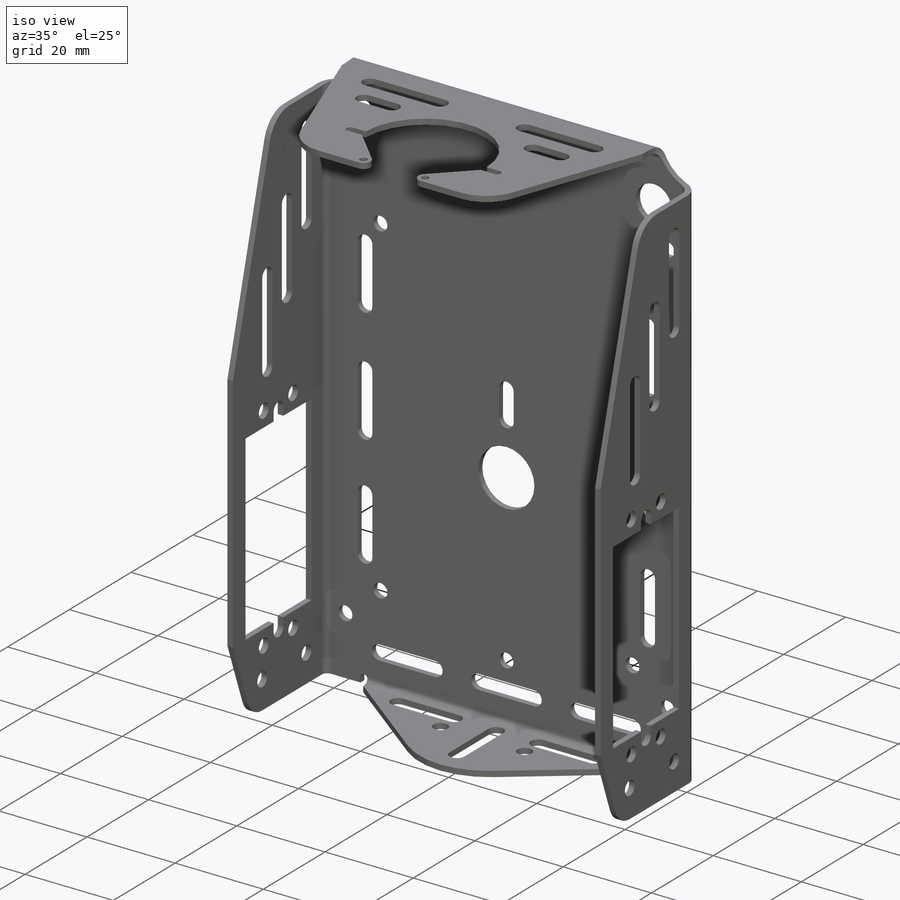
[diagram: iso view]
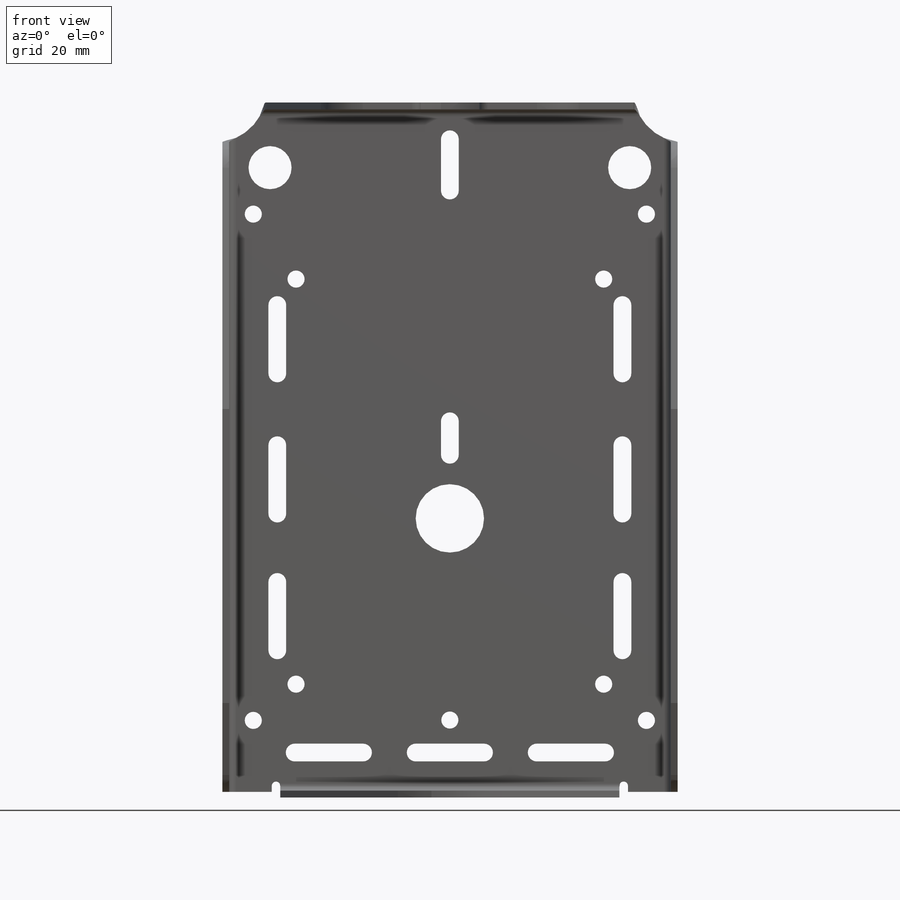
[diagram: front view]
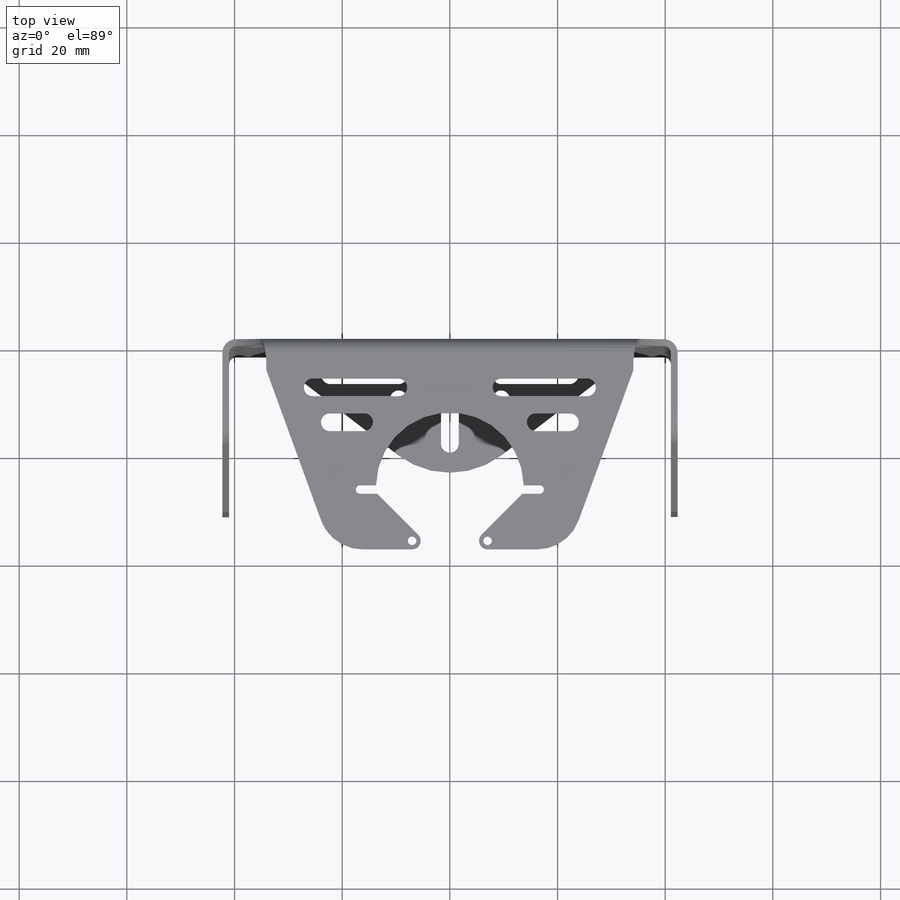
[diagram: top view]
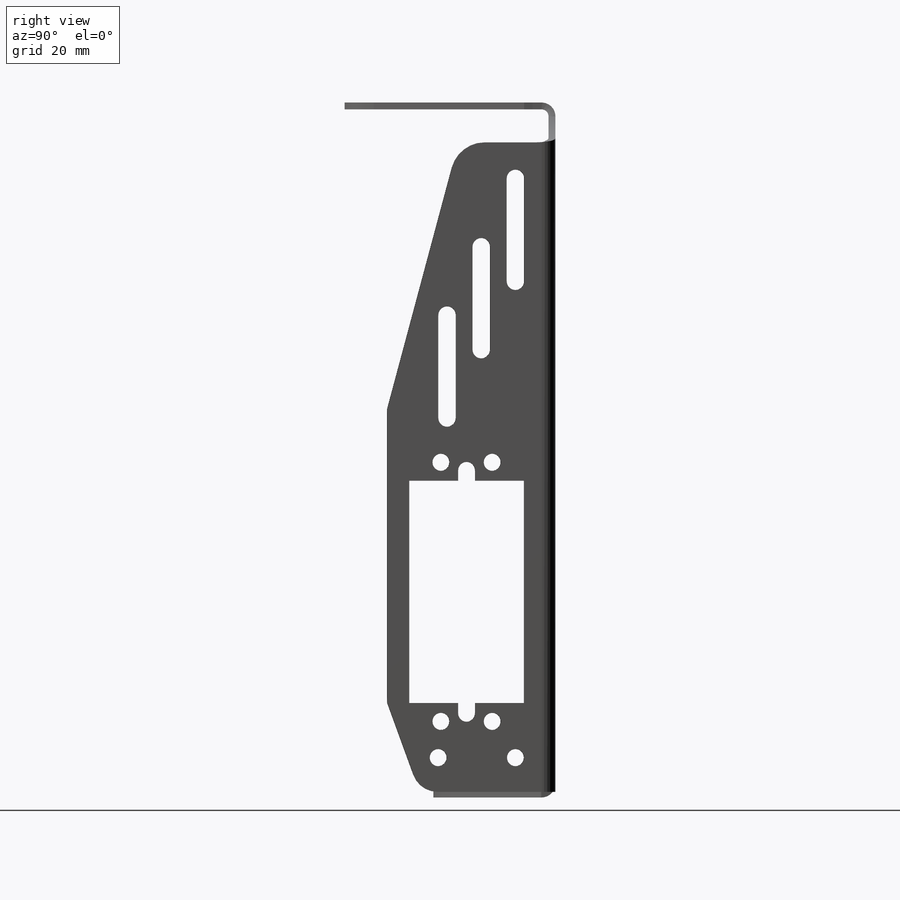
[diagram: right view]
SOLIDWORKS PART (.sldprt)
format: sldprt  version: not decoded by parser v0  size: 1,685,504 bytes
history: native  units: mm
features: sketch x9, sheet_metal_op x4, material x1, extrude x1, cut_extrude x1 + 7 further entries (+11 scaffold rows collapsed; 1 parser-record rows omitted)
feature tree (35):
  scaffold x11  (default folders/planes/origin — collapsed)
  material  "Material <not specified>"
  sketch  "Sketch1"  dims[c1.D3=~11.132347mm c1.D4=12.7mm c1.D16=~0.543831mm c1.D2=1.5875mm c2.D16=9.525mm c2.D17=8.255mm c2.D18=6.35mm c2.D21=4.7625mm c2.D22=15.875mm c2.D23=9.525mm c2.D1=~0.79375mm c2.D2=9.525mm c2.D3=8.255mm c2.D4=6.35mm c2.D5=4.7625mm c2.D6=15.875mm c3.D1=38.1mm c3.D2=150.114mm c3.D3=76.2mm c3.D5=57.15mm c4.D3=71.4375mm c4.D4=71.4375mm c4.D5=55.88mm c4.D6=~97.001087mm c5.D6=~31.907442deg c6.D6=~261.799388mm c6.D7=~261.799388mm c6.D8=6.35mm c6.D4=36.322mm c7.D7=34.0995mm c7.D9=~73.266948mm c7.D10=17.78mm c7.D11=17.78mm c8.D10=17.78mm c8.D5=55.88mm c8.D9=~6.682112mm c9.D5=~16.769649mm c9.D8=31.75mm c10.D5=6.35mm c10.D8=55.88mm c10.D9=4.7625mm c10.D10=~349.06585mm c10.D11=127.0mm c10.D12=31.496mm c10.D13=128.5875mm c10.D14=~654.498469mm c10.D15=3.81mm c10.D16=~3.01625mm c10.D2=1.5875mm c10.D19=110.49mm c10.D20=~349.06585mm c10.D23=~16.185429mm c10.D24=~23.942592mm c10.D25=34.0995mm c10.D26=~53.29345mm c10.D27=~59.427079mm c10.D28=~92.54494mm c10.D29=~16.185429mm c10.D30=~23.942592mm c10.D31=34.0995mm c10.D32=~53.29345mm c10.D33=~59.427079mm c11.D23=~16.185429mm c11.D24=4.7625mm c11.D25=29.845mm c11.D26=~32.668376mm c11.D27=38.1mm c11.D29=6.35mm c11.D30=~11.056499mm c11.D31=12.7mm c11.D32=~116.75589mm c11.D33=~163.649409mm c12.D24=12.7mm c12.D7=~9.664088mm c12.D8=~16.185429mm c12.D9=~23.942592mm c12.D10=~32.28975mm c12.D11=34.0995mm c12.D12=~53.29345mm c12.D13=~59.427079mm c12.D14=~62.093613mm c12.D15=~66.568899mm c12.D16=71.4375mm c12.D17=~9.664088mm c12.D18=~16.185429mm c12.D19=~23.942592mm c12.D20=~32.28975mm c12.D21=34.0995mm c12.D22=~53.29345mm c12.D23=~59.427079mm c13.D24=~62.093613mm c13.D25=~66.568899mm c13.D26=71.4375mm c13.D7=~9.664088mm c13.D8=~16.185429mm c13.D9=~23.942592mm c13.D10=~32.28975mm c13.D11=34.0995mm c13.D12=~53.29345mm c13.D13=~59.427079mm c13.D14=~62.093613mm c13.D15=~66.568899mm c13.D16=71.4375mm c13.D17=4.7625mm c13.D18=29.845mm c13.D19=~32.668376mm c13.D20=38.1mm c13.D21=6.35mm c13.D22=~11.056499mm c13.D23=12.7mm c14.D24=55.88mm c14.D25=110.49mm c14.D26=122.2375mm c14.D27=~123.866371mm c14.D28=~125.88875mm c14.D29=127.0mm c14.D30=128.5875mm c14.D31=~132.745231mm c14.D32=~145.339716mm c14.D17=4.7625mm c14.D18=6.35mm c14.D19=110.49mm c14.D20=41.275mm c14.D21=41.275mm c14.D22=~24.974579mm]
  sketch  "Sketch2"  dims[c1.D3=~11.132347mm c1.D4=12.7mm c1.D8=~2.050666mm c1.D20=3.302mm c1.D21=3.302mm c1.D25=3.302mm c1.D26=3.302mm c1.D28=3.302mm c1.D29=3.302mm c1.D32=~16.632856mm c1.D9=~1.890329mm c1.D46=~10.055875mm c1.D47=13.208mm c1.D53=~2.361261mm c1.D6=3.175mm c1.D7=8.001mm c1.D10=~0.79375mm c1.D11=13.716mm c1.D1=3.175mm c1.D2=3.302mm c2.D3=12.7mm c2.D4=8.001mm c2.D5=~0.79375mm c2.D6=13.716mm c2.D1=12.7mm c2.D2=8.001mm c3.D3=3.175mm c3.D4=1.651mm c3.D5=~0.79375mm c3.D6=13.716mm c3.D68=1.5875mm c3.D69=~0.828094mm c3.D1=38.1mm c3.D2=150.114mm c4.D3=76.2mm c4.D5=57.15mm c4.D1=34.925mm c4.D2=56.515mm c5.D3=150.114mm c5.D5=76.2mm c5.D6=60.96mm c5.D7=86.36mm c5.D8=6.223mm c5.D9=12.7mm c5.D10=31.8135mm c5.D11=32.0548mm c5.D12=12.7mm c5.D13=12.7mm c5.D14=12.7mm c5.D15=12.7mm c5.D16=12.7mm c5.D17=12.7mm c5.D18=6.35mm c5.D19=119.6975mm c5.D22=30.48mm c5.D23=30.48mm c5.D24=12.7mm c5.D27=12.7mm c5.D30=4.1275mm c5.D31=9.525mm c6.D9=19.05mm c6.D10=47.625mm c6.D12=11.43mm c6.D13=12.7mm c6.D22=6.35mm c6.D24=19.05mm c6.D25=6.35mm c6.D26=12.7mm c6.D32=19.05mm c6.D33=1.905mm c6.D34=1.905mm c6.D35=4.7625mm c6.D36=3.429mm c6.D37=3.429mm c6.D38=~4.235813mm c7.D37=3.429mm c7.D38=4.7625mm c7.D39=4.7625mm c7.D40=4.7625mm c7.D41=~5.485167mm c8.D40=4.7625mm c8.D41=3.429mm c8.D42=3.429mm c8.D43=128.905mm c8.D44=12.7mm c8.D45=9.525mm c8.D46=17.4625mm c8.D47=15.875mm c8.D48=6.35mm c8.D49=7.9375mm c8.D50=6.35mm c8.D51=3.175mm c8.D52=14.2875mm c8.D53=~785.398163mm c8.D12=6.35mm c8.D13=~13.49375mm c8.D18=~13.647884mm c8.D20=~13.714199mm c8.D21=~15.946933mm c8.D22=16.129mm c8.D23=~16.66875mm c8.D25=~22.296933mm c8.D26=28.575mm c8.D28=28.829mm c8.D29=32.0548mm c8.D30=33.401mm c8.D33=36.5125mm c8.D34=51.943mm c8.D35=56.7055mm c8.D36=60.325mm c8.D37=61.468mm c9.D41=67.3735mm c9.D42=74.422mm c9.D43=~13.49375mm c9.D45=~13.647884mm c9.D46=~13.714199mm c9.D48=14.2875mm c9.D49=~15.946933mm c9.D51=16.129mm c9.D52=~16.66875mm c9.D53=17.4625mm c9.D54=28.575mm c9.D55=30.48mm c9.D56=32.0548mm c9.D57=33.401mm c9.D58=36.5125mm c9.D59=51.943mm c9.D60=60.325mm c9.D61=67.3735mm c9.D62=74.422mm c9.D12=~13.49375mm c9.D13=~13.647884mm c9.D18=~15.946933mm c9.D20=~16.66875mm c9.D21=28.575mm c9.D22=33.401mm c9.D23=36.5125mm c9.D25=30.48mm c9.D26=32.0548mm c9.D28=51.943mm c9.D29=6.35mm c9.D30=~8.016292mm c9.D33=~14.493292mm c9.D34=26.416mm c9.D35=26.9875mm c9.D36=38.1mm c9.D37=41.275mm c10.D41=4.1275mm c10.D43=5.7785mm c10.D45=11.049mm c10.D46=11.43mm c10.D49=13.081mm c10.D51=19.685mm c10.D52=25.781mm c10.D53=31.75mm c10.D54=34.925mm c10.D55=36.576mm c10.D56=38.481mm c10.D57=56.515mm c10.D58=58.166mm c10.D59=60.96mm c10.D60=62.611mm c10.D61=65.786mm c10.D63=67.31mm c10.D64=69.215mm c10.D65=86.36mm c10.D66=88.011mm c10.D67=106.9975mm c10.D68=110.49mm c10.D69=112.395mm c10.D70=113.665mm c10.D71=113.7285mm c10.D72=113.919mm c10.D73=120.65mm c10.D74=130.556mm c10.D75=134.9375mm c10.D76=150.114mm c10.D29=6.35mm c10.D30=~8.016292mm c10.D33=26.416mm c10.D34=38.1mm c10.D35=4.1275mm c10.D36=11.049mm c10.D37=11.43mm c11.D41=19.685mm c11.D43=31.75mm c11.D45=34.925mm c11.D46=56.515mm c11.D49=67.31mm c11.D51=69.215mm c11.D52=106.9975mm c11.D53=110.49mm c11.D54=113.665mm c11.D55=113.7285mm c11.D56=120.65mm c11.D57=134.9375mm c11.D58=150.114mm c11.D7=6.35mm c11.D8=9.525mm c11.D9=9.5885mm c11.D10=~13.49375mm c11.D11=~13.647884mm c11.D12=~13.714199mm c11.D13=~15.946933mm c11.D14=16.129mm c11.D15=~16.66875mm c11.D16=22.225mm c11.D17=~22.296933mm c11.D18=25.4635mm c11.D19=28.575mm c11.D20=28.829mm c11.D21=32.0548mm c11.D22=33.401mm c11.D23=36.5125mm c11.D24=46.0375mm c11.D25=47.625mm c11.D26=51.943mm c11.D27=53.975mm c11.D28=56.7055mm c11.D29=60.325mm c11.D30=61.468mm c11.D31=67.3735mm c11.D32=74.422mm c11.D33=6.35mm c11.D34=7.9375mm c11.D35=9.525mm c11.D36=9.5885mm c11.D37=~13.49375mm c11.D38=~13.647884mm c11.D39=~13.714199mm c11.D40=14.2875mm c12.D41=~15.946933mm c12.D42=16.129mm c12.D43=~16.66875mm c12.D44=17.4625mm c12.D45=22.225mm c12.D46=~22.296933mm c12.D47=25.4635mm c12.D48=28.575mm c12.D49=28.829mm c12.D50=30.48mm c12.D51=32.0548mm c12.D52=33.401mm c12.D53=36.5125mm c12.D54=46.0375mm c12.D55=47.625mm c12.D56=51.943mm c12.D57=53.975mm c12.D58=56.7055mm c12.D59=60.325mm c12.D60=61.468mm c12.D61=67.3735mm c12.D62=74.422mm c12.D7=6.35mm c12.D8=9.525mm c12.D9=~13.49375mm c12.D10=~13.647884mm c12.D11=~15.946933mm c12.D12=16.129mm c12.D13=~16.66875mm c12.D14=22.225mm c12.D15=25.4635mm c12.D16=28.575mm c12.D17=32.0548mm c12.D18=33.401mm c12.D19=36.5125mm c12.D20=46.0375mm c12.D21=51.943mm c12.D22=53.975mm c12.D23=56.7055mm c12.D24=60.325mm c12.D25=61.468mm c12.D26=74.422mm c12.D27=14.2875mm c12.D28=74.422mm c12.D29=6.35mm c12.D30=~8.016292mm c12.D31=~14.493292mm c12.D32=26.416mm c12.D33=26.9875mm c12.D34=38.1mm c12.D35=41.275mm c12.D36=4.1275mm c12.D37=5.7785mm c12.D38=11.049mm c12.D39=11.43mm c12.D40=13.081mm c13.D41=15.3035mm c13.D42=19.685mm c13.D43=25.781mm c13.D44=31.75mm c13.D45=32.131mm c13.D46=34.925mm c13.D47=36.576mm c13.D48=38.481mm c13.D49=44.831mm c13.D50=49.276mm c13.D51=56.515mm c13.D52=57.531mm c13.D53=58.166mm c13.D54=60.96mm c13.D55=62.611mm c13.D56=64.389mm c13.D57=65.786mm c13.D58=67.31mm c13.D59=69.215mm c13.D60=75.311mm c13.D61=76.2mm c13.D62=86.36mm c13.D63=88.011mm c13.D64=100.711mm c13.D65=106.9975mm c13.D66=110.49mm c13.D67=112.395mm c13.D68=113.665mm c13.D69=113.7285mm c13.D70=113.919mm c13.D71=119.6975mm c13.D72=120.65mm c13.D73=130.556mm c13.D74=134.9375mm c13.D75=143.256mm c13.D76=150.114mm c13.D30=~8.016292mm c13.D31=~14.493292mm c13.D32=26.416mm c13.D33=4.1275mm c13.D35=11.43mm c13.D36=25.781mm c13.D37=32.131mm c13.D39=34.925mm c13.D40=38.481mm c14.D43=56.515mm c14.D45=60.96mm c14.D46=67.31mm c14.D47=69.215mm c14.D48=76.2mm c14.D49=86.36mm c14.D50=110.49mm c14.D51=119.6975mm c14.D52=130.556mm c14.D53=134.9375mm c14.D7=6.35mm c14.D8=9.525mm c14.D9=9.5885mm c14.D10=~13.49375mm c14.D11=~13.647884mm c14.D12=~13.714199mm c14.D13=~15.946933mm c14.D14=16.129mm c14.D15=~16.66875mm c14.D16=22.225mm c14.D17=~22.296933mm c14.D18=25.4635mm c14.D19=28.575mm c14.D20=28.829mm c14.D21=32.0548mm c14.D22=33.401mm c14.D23=36.5125mm c14.D24=46.0375mm c14.D25=47.625mm c14.D26=51.943mm c14.D27=53.975mm c14.D28=56.7055mm c14.D29=60.325mm c14.D30=61.468mm c14.D31=67.3735mm c14.D32=6.35mm c14.D33=9.525mm c14.D34=9.5885mm c14.D35=~13.49375mm c14.D36=~13.647884mm c14.D37=~13.714199mm c14.D38=~15.946933mm c14.D39=16.129mm c14.D40=~16.66875mm c14.D41=22.225mm c14.D42=~22.296933mm c15.D43=25.4635mm c15.D44=28.575mm c15.D45=28.829mm c15.D46=32.0548mm c15.D47=33.401mm c15.D48=36.5125mm c15.D49=46.0375mm c15.D50=47.625mm c15.D51=51.943mm c15.D52=53.975mm c15.D53=56.7055mm c15.D54=60.325mm c15.D55=61.468mm c15.D56=67.3735mm c15.D7=6.35mm c15.D8=9.525mm c15.D9=9.5885mm c15.D10=~13.49375mm c15.D11=~13.647884mm c15.D12=~15.946933mm c15.D13=16.129mm c15.D14=~16.66875mm c15.D15=22.225mm c15.D16=25.4635mm c15.D17=28.575mm c15.D18=33.401mm c15.D19=36.5125mm c15.D20=46.0375mm c15.D21=51.943mm c15.D22=53.975mm c15.D23=56.7055mm c15.D24=60.325mm c15.D25=61.468mm c15.D26=9.525mm c15.D27=9.5885mm c15.D28=~15.946933mm c15.D29=16.129mm c15.D30=28.575mm c15.D31=32.0548mm c15.D32=33.401mm c15.D33=36.5125mm c15.D34=46.0375mm c15.D35=51.943mm c15.D36=53.975mm c15.D37=60.325mm c15.D38=61.468mm c15.D39=~8.016292mm c15.D40=~14.493292mm c15.D41=26.416mm c15.D42=26.9875mm c16.D43=41.275mm c16.D44=5.7785mm c16.D45=11.049mm c16.D46=13.081mm c16.D47=15.3035mm c16.D48=19.685mm c16.D49=25.781mm c16.D50=31.75mm c16.D51=32.131mm c16.D52=36.576mm c16.D53=38.481mm c16.D54=44.831mm c16.D55=49.276mm c16.D56=57.531mm c16.D57=58.166mm c16.D58=62.611mm c16.D59=64.389mm c16.D60=65.786mm c16.D61=67.31mm c16.D62=69.215mm c16.D63=75.311mm c16.D64=76.2mm c16.D65=88.011mm c16.D66=100.711mm c16.D67=106.9975mm c16.D68=110.49mm c16.D69=112.395mm c16.D70=113.665mm c16.D71=113.7285mm c16.D72=113.919mm c16.D73=119.6975mm c16.D74=120.65mm c16.D75=130.556mm c16.D76=134.9375mm c16.D77=143.256mm c16.D39=~8.016292mm c16.D40=~14.493292mm c16.D41=26.416mm c16.D42=13.081mm c17.D43=25.781mm c17.D46=32.131mm c17.D49=36.576mm c17.D51=38.481mm c17.D52=62.611mm c17.D53=67.31mm c17.D54=69.215mm c17.D55=76.2mm c17.D56=88.011mm c17.D58=110.49mm c17.D61=112.395mm c17.D62=119.6975mm c17.D63=130.556mm c17.D64=134.9375mm c17.D65=32.0548mm c17.D66=75.311mm]
  extrude  "Boss-Extrude1"  Depth=1.27mm
  cut_extrude  "Cut-Extrude1"  [1 undecoded]
  sketch  "3DSketch1"  dims[D1=41.275mm D2=41.275mm]
  sheet_metal_op  "Sheet-Metal1"
  sketch  "Sketch5"
  parser-record x1  (decoder bookkeeping rows leaked as tree rows — omitted from the tree; the rows remain in map.json)
  sketch  "Sketch6"
  sheet_metal_op  "Sketched Bend2"  Sketch Transformation2=0
  "SketchBend2"
  sketch  "Sketch8"
  sheet_metal_op  "Sketched Bend3"  Sketch Transformation3=0
  "SketchBend3"
  sketch  "Sketch9"
  sheet_metal_op  "Sketched Bend5"  Sketch Transformation5=0
  "SketchBend5"
  "Flat-Pattern1"
  sketch  "Bend-Lines1"
  sketch  "Bounding-Box1"
  "Flatten-<SketchBend2>1"
  "Flatten-<SketchBend3>1"
  "Flatten-<SketchBend5>1"  Sketch Transformation6=0
decode coverage: 7 of 15 modeling features carry decoded parameters; 7 rows unclassified (native names shown)
note: ~ marks probable driven/reference dimensions
note: 1 parameter value undecoded
note: suppression state not decoded; provenance and decode notes live in map.json
